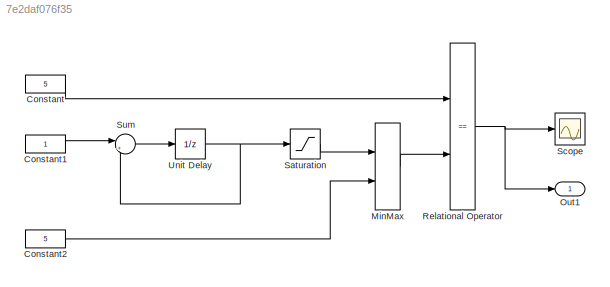
MODEL slx_7e2daf076f35
KIND model
CONFIG AbsTol = auto
CONFIG FixedStep = auto
CONFIG MaxStep = auto
CONFIG MinStep = auto
CONFIG RelTol = 1e-3
CONFIG SampleTimeConstraint = Unconstrained
CONFIG Solver = FixedStepDiscrete
CONFIG SolverMode = SingleTasking
CONFIG SolverName = FixedStepDiscrete
CONFIG StartTime = 0.0
CONFIG StopTime = 10
BLOCK [Constant] Constant
  AttributesFormatString = DataType = %<OutDataTypeStr>
  OutDataTypeStr = fixdt(1,8,1)
  SampleTime = -1
  Value = 5
BLOCK [Constant] Constant1
  AttributesFormatString = DataType = %<OutDataTypeStr>
  OutDataTypeStr = fixdt(1,8,1)
  SampleTime = -1
BLOCK [Constant] Constant2
  AttributesFormatString = DataType = %<OutDataTypeStr>
  OutDataTypeStr = fixdt(1,8,1)
  SampleTime = -1
  Value = 5
BLOCK [MinMax] MinMax
  InputSameDT = off
  Inputs = 2
  Ports = [2, 1]
  SaturateOnIntegerOverflow = off
BLOCK [Outport] Out1
  IconDisplay = Port number
BLOCK [RelationalOperator] Relational Operator
  InputSameDT = off
  Operator = ==
  OutDataTypeStr = boolean
  Ports = [2, 1]
BLOCK [Saturate] Saturation
  AttributesFormatString = max = %<UpperLimit>\nmin = %<LowerLimit>
  InputPortMap = u0
  LowerLimit = -8
  Ports = [1, 1]
  UpperLimit = 8
BLOCK [Scope] Scope
  Ports = [1]
  ScopeSpecificationString = C++SS(StrPVP('Location','[188, 390, 512, 629]'),StrPVP('Open','off'),MxPVP('AxesTitles',24,'struct(''axes1'',''%<SignalLabel>'')'),StrPVP('DataFormat','StructureWithTime'),StrPVP('BlockParamSampleTime','0'),StrPVP('LimitDataPoints','on'),StrPVP('Decimation','1'),StrPVP('BlockParamSampleInput','off'))
BLOCK [Sum] Sum
  IconShape = round
  InputSameDT = off
  Inputs = |++
  Ports = [2, 1]
  SaturateOnIntegerOverflow = off
BLOCK [UnitDelay] Unit Delay
  AttributesFormatString = initial = %<X0>
  SampleTime = -1
  StateName = ud_i
LINE Constant1:1 -> Sum:1
LINE Constant2:1 -> MinMax:2
LINE Constant:1 -> Relational Operator:1
LINE MinMax:1 -> Relational Operator:2
NET Relational Operator:1 -> Out1:1, Scope:1
LINE Saturation:1 -> MinMax:1
LINE Sum:1 -> Unit Delay:1
NET Unit Delay:1 -> Saturation:1, Sum:2
note: NET lines group one-source signal fan-out (src -> all destinations, sorted); 1:1 wires keep LINE
